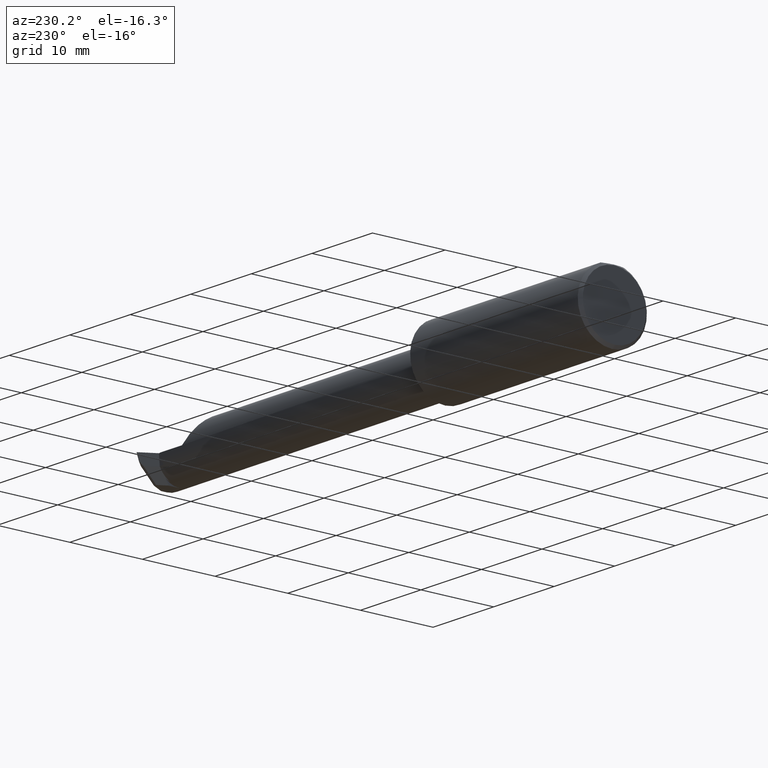
[diagram: clean part render]
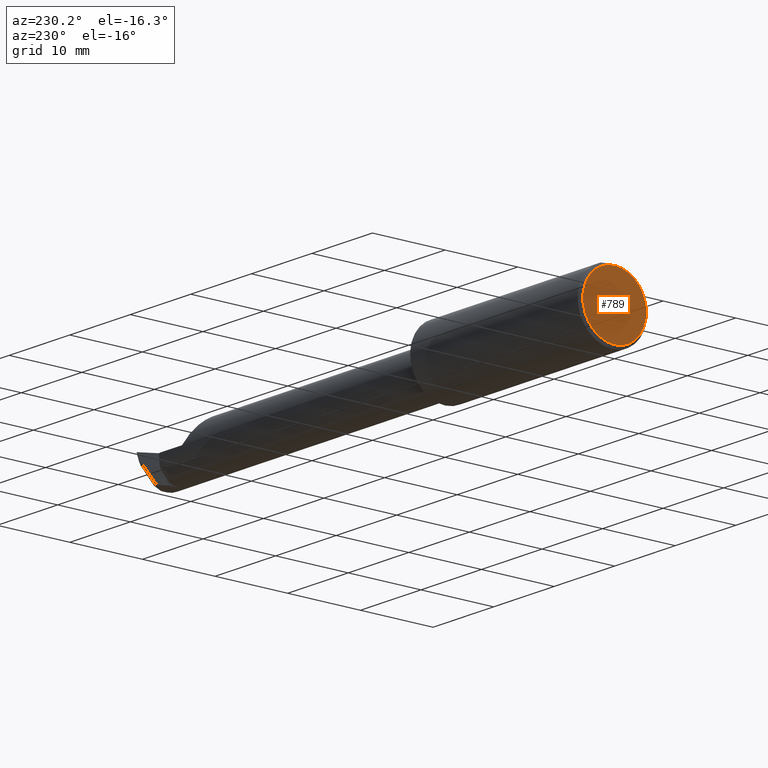
[diagram: same view with one face highlighted and labeled with its STEP entity id]
A machine part, auxiliary view. The second image highlights one B-rep face of the part: STEP entity #789.
In plain terms, the highlighted planar face has unit normal (1, 0, 0).
Its self-contained STEP definition (entity closure, byte-faithful):
#11 = EDGE_CURVE ( 'NONE', #236, #78, #826, .T. ) ;
#41 = CARTESIAN_POINT ( 'NONE',  ( 0.000000000000000000, 0.000000000000000000, -0.1723499999999960064 ) ) ;
#78 = VERTEX_POINT ( 'NONE', #41 ) ;
#89 = ORIENTED_EDGE ( 'NONE', *, *, #11, .T. ) ;
#143 = CIRCLE ( 'NONE', #318, 0.1723499999999960064 ) ;
#206 = CARTESIAN_POINT ( 'NONE',  ( 0.000000000000000000, 0.000000000000000000, 0.000000000000000000 ) ) ;
#236 = VERTEX_POINT ( 'NONE', #444 ) ;
#240 = DIRECTION ( 'NONE',  ( -1.000000000000000000, -0.000000000000000000, -0.000000000000000000 ) ) ;
#315 = EDGE_LOOP ( 'NONE', ( #638, #89 ) ) ;
#316 = DIRECTION ( 'NONE',  ( 0.000000000000000000, 0.000000000000000000, -1.000000000000000000 ) ) ;
#317 = AXIS2_PLACEMENT_3D ( 'NONE', #695, #240, #316 ) ;
#318 = AXIS2_PLACEMENT_3D ( 'NONE', #206, #434, #448 ) ;
#434 = DIRECTION ( 'NONE',  ( -1.000000000000000000, -0.000000000000000000, -0.000000000000000000 ) ) ;
#444 = CARTESIAN_POINT ( 'NONE',  ( 0.000000000000000000, 2.202527268266490391E-17, 0.1723499999999960064 ) ) ;
#448 = DIRECTION ( 'NONE',  ( 0.000000000000000000, 0.000000000000000000, -1.000000000000000000 ) ) ;
#486 = CARTESIAN_POINT ( 'NONE',  ( 0.000000000000000000, 0.000000000000000000, 0.000000000000000000 ) ) ;
#638 = ORIENTED_EDGE ( 'NONE', *, *, #704, .T. ) ;
#665 = AXIS2_PLACEMENT_3D ( 'NONE', #486, #851, #935 ) ;
#695 = CARTESIAN_POINT ( 'NONE',  ( 0.000000000000000000, 0.000000000000000000, 0.000000000000000000 ) ) ;
#700 = FACE_OUTER_BOUND ( 'NONE', #315, .T. ) ;
#704 = EDGE_CURVE ( 'NONE', #78, #236, #143, .T. ) ;
#789 = ADVANCED_FACE ( 'NONE', ( #700 ), #923, .F. ) ;
#826 = CIRCLE ( 'NONE', #317, 0.1723499999999960064 ) ;
#851 = DIRECTION ( 'NONE',  ( 1.000000000000000000, 0.000000000000000000, 0.000000000000000000 ) ) ;
#923 = PLANE ( 'NONE',  #665 ) ;
#935 = DIRECTION ( 'NONE',  ( 0.000000000000000000, 0.000000000000000000, -1.000000000000000000 ) ) ;